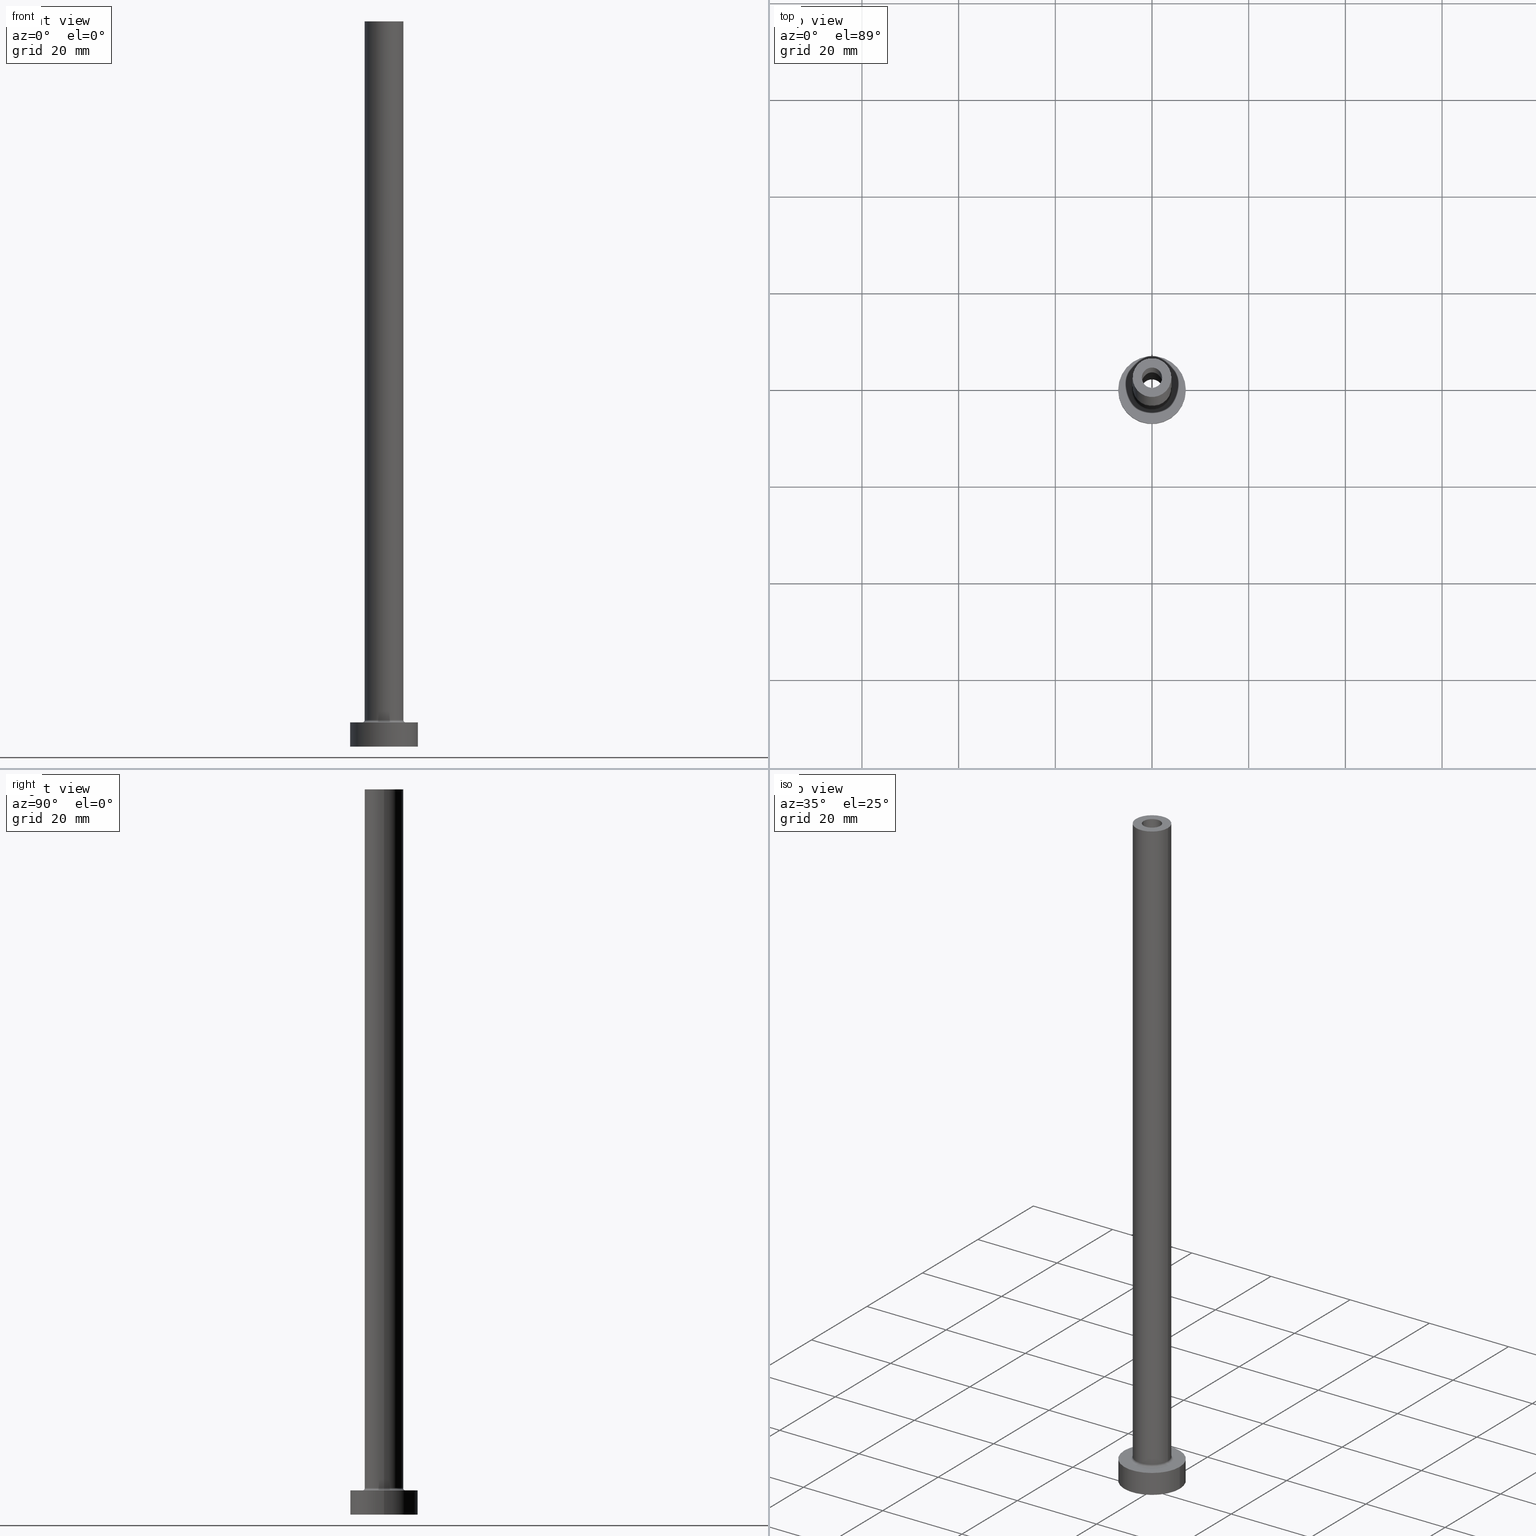
[diagram: canonical four-view strip — front | top / right | iso, engineering-drawing reading convention]
A machine part, canonical four-view strip (front | top / right | iso — engineering-drawing reading convention). The complete STEP part file that produces these views, byte-faithful:
ISO-10303-21;
HEADER;
FILE_DESCRIPTION (( 'STEP AP203' ),
    '1' );
FILE_NAME ('b5b8.STEP',
    '2023-02-13T17:33:29',
    ( '' ),
    ( '' ),
    'SwSTEP 2.0',
    'SolidWorks 2019',
    '' );
FILE_SCHEMA (( 'CONFIG_CONTROL_DESIGN' ));
ENDSEC;

DATA;
#1 = LINE ( 'NONE', #396, #433 ) ;
#2 = EDGE_LOOP ( 'NONE', ( #245, #280, #75, #29 ) ) ;
#3 = CC_DESIGN_DATE_AND_TIME_ASSIGNMENT ( #404, #343, ( #247 ) ) ;
#4 = DIRECTION ( 'NONE',  ( 1.000000000000000000, 0.000000000000000000, 0.000000000000000000 ) ) ;
#5 = EDGE_LOOP ( 'NONE', ( #38, #45, #351, #422 ) ) ;
#6 = DIRECTION ( 'NONE',  ( 0.000000000000000000, 0.000000000000000000, 1.000000000000000000 ) ) ;
#7 = AXIS2_PLACEMENT_3D ( 'NONE', #320, #432, #176 ) ;
#8 = VERTEX_POINT ( 'NONE', #226 ) ;
#9 = DATE_AND_TIME ( #296, #219 ) ;
#10 = FACE_OUTER_BOUND ( 'NONE', #282, .T. ) ;
#11 = CARTESIAN_POINT ( 'NONE',  ( -2.100000000000000089, 0.000000000000000000, 150.0000000000000000 ) ) ;
#12 = CARTESIAN_POINT ( 'NONE',  ( 0.000000000000000000, 0.000000000000000000, 150.0000000000000000 ) ) ;
#13 = CIRCLE ( 'NONE', #411, 4.000000000000000000 ) ;
#14 = AXIS2_PLACEMENT_3D ( 'NONE', #365, #257, #55 ) ;
#15 = DIRECTION ( 'NONE',  ( 0.000000000000000000, 0.000000000000000000, -1.000000000000000000 ) ) ;
#16 = CC_DESIGN_DATE_AND_TIME_ASSIGNMENT ( #375, #21, ( #452 ) ) ;
#17 = ORIENTED_EDGE ( 'NONE', *, *, #221, .T. ) ;
#18 = DATE_AND_TIME ( #443, #327 ) ;
#19 = CARTESIAN_POINT ( 'NONE',  ( 0.000000000000000000, 0.000000000000000000, 150.0000000000000000 ) ) ;
#20 = AXIS2_PLACEMENT_3D ( 'NONE', #268, #233, #228 ) ;
#21 = DATE_TIME_ROLE ( 'classification_date' ) ;
#22 = CARTESIAN_POINT ( 'NONE',  ( 0.000000000000000000, 0.000000000000000000, 5.500000000000005329 ) ) ;
#23 = EDGE_CURVE ( 'NONE', #173, #392, #117, .T. ) ;
#24 = CALENDAR_DATE ( 2023, 13, 2 ) ;
#25 = FACE_OUTER_BOUND ( 'NONE', #130, .T. ) ;
#26 = ORIENTED_EDGE ( 'NONE', *, *, #449, .F. ) ;
#27 = PERSON_AND_ORGANIZATION ( #447, #426 ) ;
#28 = CARTESIAN_POINT ( 'NONE',  ( 0.000000000000000000, 0.000000000000000000, 5.000000000000000000 ) ) ;
#29 = ORIENTED_EDGE ( 'NONE', *, *, #439, .F. ) ;
#30 = AXIS2_PLACEMENT_3D ( 'NONE', #22, #419, #59 ) ;
#31 = APPROVAL_STATUS ( 'not_yet_approved' ) ;
#32 = CARTESIAN_POINT ( 'NONE',  ( -4.000000000000000000, 0.000000000000000000, 5.500000000000005329 ) ) ;
#33 = VERTEX_POINT ( 'NONE', #401 ) ;
#34 = EDGE_CURVE ( 'NONE', #137, #241, #53, .T. ) ;
#35 = PLANE ( 'NONE',  #205 ) ;
#36 = ORIENTED_EDGE ( 'NONE', *, *, #114, .F. ) ;
#37 = FACE_OUTER_BOUND ( 'NONE', #185, .T. ) ;
#38 = ORIENTED_EDGE ( 'NONE', *, *, #276, .F. ) ;
#39 = AXIS2_PLACEMENT_3D ( 'NONE', #169, #160, #274 ) ;
#40 = CC_DESIGN_APPROVAL ( #402, ( #452 ) ) ;
#41 = CARTESIAN_POINT ( 'NONE',  ( 0.000000000000000000, 0.000000000000000000, 150.0000000000000000 ) ) ;
#42 = VERTEX_POINT ( 'NONE', #403 ) ;
#43 = EDGE_CURVE ( 'NONE', #309, #326, #307, .T. ) ;
#44 = CARTESIAN_POINT ( 'NONE',  ( 0.000000000000000000, 0.000000000000000000, 5.000000000000000000 ) ) ;
#45 = ORIENTED_EDGE ( 'NONE', *, *, #377, .T. ) ;
#46 = DIRECTION ( 'NONE',  ( 0.000000000000000000, 0.000000000000000000, 1.000000000000000000 ) ) ;
#47 = VERTEX_POINT ( 'NONE', #323 ) ;
#48 = FACE_OUTER_BOUND ( 'NONE', #102, .T. ) ;
#49 = AXIS2_PLACEMENT_3D ( 'NONE', #12, #156, #409 ) ;
#50 = DIRECTION ( 'NONE',  ( 0.000000000000000000, 0.000000000000000000, -1.000000000000000000 ) ) ;
#51 = EDGE_CURVE ( 'NONE', #47, #241, #374, .T. ) ;
#52 = APPLICATION_PROTOCOL_DEFINITION ( 'international standard', 'config_control_design', 1994, #394 ) ;
#53 = CIRCLE ( 'NONE', #416, 2.250000000000000000 ) ;
#54 = EDGE_CURVE ( 'NONE', #8, #318, #325, .T. ) ;
#55 = DIRECTION ( 'NONE',  ( 1.000000000000000000, 0.000000000000000000, 0.000000000000000000 ) ) ;
#56 = DIRECTION ( 'NONE',  ( 0.000000000000000000, 0.000000000000000000, -1.000000000000000000 ) ) ;
#57 = DIRECTION ( 'NONE',  ( 1.000000000000000000, 0.000000000000000000, 0.000000000000000000 ) ) ;
#58 = ADVANCED_FACE ( 'NONE', ( #10 ), #438, .F. ) ;
#59 = DIRECTION ( 'NONE',  ( 1.000000000000000000, 0.000000000000000000, 0.000000000000000000 ) ) ;
#60 = CLOSED_SHELL ( 'NONE', ( #208, #407, #428, #201, #418, #74, #227, #346, #341, #319, #383, #267, #162, #58 ) ) ;
#61 = AXIS2_PLACEMENT_3D ( 'NONE', #324, #357, #425 ) ;
#62 = COORDINATED_UNIVERSAL_TIME_OFFSET ( 1, 0, .AHEAD. ) ;
#63 = DIRECTION ( 'NONE',  ( -0.000000000000000000, -0.000000000000000000, -1.000000000000000000 ) ) ;
#64 = FACE_OUTER_BOUND ( 'NONE', #149, .T. ) ;
#65 = ORIENTED_EDGE ( 'NONE', *, *, #23, .F. ) ;
#66 = DIRECTION ( 'NONE',  ( 1.000000000000000000, 0.000000000000000000, 0.000000000000000000 ) ) ;
#67 = ORIENTED_EDGE ( 'NONE', *, *, #293, .T. ) ;
#68 = AXIS2_PLACEMENT_3D ( 'NONE', #197, #423, #338 ) ;
#69 = LINE ( 'NONE', #181, #316 ) ;
#70 = ORIENTED_EDGE ( 'NONE', *, *, #189, .F. ) ;
#71 = DIRECTION ( 'NONE',  ( 1.000000000000000000, 0.000000000000000000, 0.000000000000000000 ) ) ;
#72 = EDGE_LOOP ( 'NONE', ( #180, #385 ) ) ;
#73 = LINE ( 'NONE', #244, #139 ) ;
#74 = ADVANCED_FACE ( 'NONE', ( #25 ), #415, .T. ) ;
#75 = ORIENTED_EDGE ( 'NONE', *, *, #43, .F. ) ;
#76 =( GEOMETRIC_REPRESENTATION_CONTEXT ( 3 ) GLOBAL_UNCERTAINTY_ASSIGNED_CONTEXT ( ( #266 ) ) GLOBAL_UNIT_ASSIGNED_CONTEXT ( ( #152, #225, #118 ) ) REPRESENTATION_CONTEXT ( 'NONE', 'WORKASPACE' ) );
#77 = DIRECTION ( 'NONE',  ( 0.000000000000000000, 0.000000000000000000, 1.000000000000000000 ) ) ;
#78 = CARTESIAN_POINT ( 'NONE',  ( 2.250000000000000000, 2.755455298081544285E-16, 111.3639610306789223 ) ) ;
#79 = PRODUCT_DEFINITION_SHAPE ( 'NONE', 'NONE',  #247 ) ;
#80 = CARTESIAN_POINT ( 'NONE',  ( -2.100000000000000089, 0.000000000000000000, 105.0000000000000000 ) ) ;
#81 = EDGE_LOOP ( 'NONE', ( #105, #362 ) ) ;
#82 = DIRECTION ( 'NONE',  ( 0.000000000000000000, 0.000000000000000000, -1.000000000000000000 ) ) ;
#83 = ORIENTED_EDGE ( 'NONE', *, *, #54, .F. ) ;
#84 = AXIS2_PLACEMENT_3D ( 'NONE', #421, #204, #349 ) ;
#85 = PERSON_AND_ORGANIZATION ( #447, #426 ) ;
#86 = APPROVAL ( #328, 'NEUR�EN�' ) ;
#87 = DIRECTION ( 'NONE',  ( -0.000000000000000000, -0.000000000000000000, -1.000000000000000000 ) ) ;
#88 = ORIENTED_EDGE ( 'NONE', *, *, #51, .T. ) ;
#89 = AXIS2_PLACEMENT_3D ( 'NONE', #220, #87, #157 ) ;
#90 = ORIENTED_EDGE ( 'NONE', *, *, #255, .T. ) ;
#91 = CARTESIAN_POINT ( 'NONE',  ( -2.250000000000000000, 0.000000000000000000, 111.3639610306789223 ) ) ;
#92 = SHAPE_DEFINITION_REPRESENTATION ( #79, #306 ) ;
#93 = DIRECTION ( 'NONE',  ( -1.000000000000000000, 0.000000000000000000, 0.000000000000000000 ) ) ;
#94 = VECTOR ( 'NONE', #82, 1000.000000000000000 ) ;
#95 = DIRECTION ( 'NONE',  ( 1.000000000000000000, 0.000000000000000000, 0.000000000000000000 ) ) ;
#96 = ORIENTED_EDGE ( 'NONE', *, *, #125, .T. ) ;
#97 = APPROVAL_STATUS ( 'not_yet_approved' ) ;
#98 = CARTESIAN_POINT ( 'NONE',  ( -7.000000000000000000, 0.000000000000000000, 0.000000000000000000 ) ) ;
#99 = EDGE_CURVE ( 'NONE', #203, #33, #186, .T. ) ;
#100 = ORIENTED_EDGE ( 'NONE', *, *, #232, .F. ) ;
#101 = LINE ( 'NONE', #354, #154 ) ;
#102 = EDGE_LOOP ( 'NONE', ( #96, #88, #364, #36 ) ) ;
#103 = CIRCLE ( 'NONE', #161, 2.100000000000000089 ) ;
#104 = DIRECTION ( 'NONE',  ( -0.000000000000000000, -0.000000000000000000, -1.000000000000000000 ) ) ;
#105 = ORIENTED_EDGE ( 'NONE', *, *, #168, .T. ) ;
#106 = CARTESIAN_POINT ( 'NONE',  ( 4.500000000000000888, 0.000000000000000000, 5.000000000000002665 ) ) ;
#107 = ORIENTED_EDGE ( 'NONE', *, *, #457, .F. ) ;
#108 = DIRECTION ( 'NONE',  ( -0.000000000000000000, -0.000000000000000000, -1.000000000000000000 ) ) ;
#109 = CARTESIAN_POINT ( 'NONE',  ( 0.000000000000000000, 0.000000000000000000, 5.000000000000000000 ) ) ;
#110 = AXIS2_PLACEMENT_3D ( 'NONE', #196, #304, #95 ) ;
#111 = CARTESIAN_POINT ( 'NONE',  ( 0.000000000000000000, 0.000000000000000000, 0.000000000000000000 ) ) ;
#112 = ORIENTED_EDGE ( 'NONE', *, *, #293, .F. ) ;
#113 = ORIENTED_EDGE ( 'NONE', *, *, #43, .T. ) ;
#114 = EDGE_CURVE ( 'NONE', #42, #137, #200, .T. ) ;
#115 = CARTESIAN_POINT ( 'NONE',  ( 0.000000000000000000, 0.000000000000000000, 5.500000000000005329 ) ) ;
#116 = ORIENTED_EDGE ( 'NONE', *, *, #34, .T. ) ;
#117 = CIRCLE ( 'NONE', #358, 7.000000000000000000 ) ;
#118 =( NAMED_UNIT ( * ) SI_UNIT ( $, .STERADIAN. ) SOLID_ANGLE_UNIT ( ) );
#119 = APPLICATION_PROTOCOL_DEFINITION ( 'international standard', 'config_control_design', 1994, #369 ) ;
#120 = APPROVAL_DATE_TIME ( #18, #260 ) ;
#121 = ORIENTED_EDGE ( 'NONE', *, *, #99, .T. ) ;
#122 = AXIS2_PLACEMENT_3D ( 'NONE', #284, #77, #4 ) ;
#123 = DESIGN_CONTEXT ( 'detailed design', #394, 'design' ) ;
#124 = DIRECTION ( 'NONE',  ( -1.000000000000000000, 1.224646799147351482E-16, 0.000000000000000000 ) ) ;
#125 = EDGE_CURVE ( 'NONE', #42, #47, #147, .T. ) ;
#126 = APPROVAL_ROLE ( '' ) ;
#127 = CYLINDRICAL_SURFACE ( 'NONE', #287, 2.100000000000000089 ) ;
#128 = DIRECTION ( 'NONE',  ( -0.000000000000000000, -0.000000000000000000, -1.000000000000000000 ) ) ;
#129 = AXIS2_PLACEMENT_3D ( 'NONE', #111, #315, #456 ) ;
#130 = EDGE_LOOP ( 'NONE', ( #146, #65, #212, #167 ) ) ;
#131 = COORDINATED_UNIVERSAL_TIME_OFFSET ( 1, 0, .AHEAD. ) ;
#132 = CC_DESIGN_PERSON_AND_ORGANIZATION_ASSIGNMENT ( #442, #150, ( #247 ) ) ;
#133 = DIRECTION ( 'NONE',  ( 1.000000000000000000, 0.000000000000000000, -0.000000000000000000 ) ) ;
#134 = DIRECTION ( 'NONE',  ( 1.000000000000000000, 0.000000000000000000, 0.000000000000000000 ) ) ;
#135 = ORIENTED_EDGE ( 'NONE', *, *, #439, .T. ) ;
#136 = LINE ( 'NONE', #216, #397 ) ;
#137 = VERTEX_POINT ( 'NONE', #342 ) ;
#138 = EDGE_CURVE ( 'NONE', #171, #321, #333, .T. ) ;
#139 = VECTOR ( 'NONE', #393, 1000.000000000000000 ) ;
#140 = APPROVAL_PERSON_ORGANIZATION ( #262, #402, #347 ) ;
#141 = FACE_OUTER_BOUND ( 'NONE', #427, .T. ) ;
#142 = VERTEX_POINT ( 'NONE', #98 ) ;
#143 = FACE_OUTER_BOUND ( 'NONE', #151, .T. ) ;
#144 = ORIENTED_EDGE ( 'NONE', *, *, #334, .F. ) ;
#145 = DIRECTION ( 'NONE',  ( 0.000000000000000000, 0.000000000000000000, 1.000000000000000000 ) ) ;
#146 = ORIENTED_EDGE ( 'NONE', *, *, #377, .F. ) ;
#147 = CIRCLE ( 'NONE', #110, 2.250000000000000000 ) ;
#148 = FACE_OUTER_BOUND ( 'NONE', #353, .T. ) ;
#149 = EDGE_LOOP ( 'NONE', ( #236, #330 ) ) ;
#150 = PERSON_AND_ORGANIZATION_ROLE ( 'creator' ) ;
#151 = EDGE_LOOP ( 'NONE', ( #158, #107, #292, #237 ) ) ;
#152 =( LENGTH_UNIT ( ) NAMED_UNIT ( * ) SI_UNIT ( .MILLI., .METRE. ) );
#153 = EDGE_CURVE ( 'NONE', #47, #42, #300, .T. ) ;
#154 = VECTOR ( 'NONE', #207, 1000.000000000000000 ) ;
#155 = AXIS2_PLACEMENT_3D ( 'NONE', #406, #259, #331 ) ;
#156 = DIRECTION ( 'NONE',  ( 0.000000000000000000, 0.000000000000000000, 1.000000000000000000 ) ) ;
#157 = DIRECTION ( 'NONE',  ( -1.000000000000000000, 0.000000000000000000, 0.000000000000000000 ) ) ;
#158 = ORIENTED_EDGE ( 'NONE', *, *, #138, .F. ) ;
#159 = PERSON_AND_ORGANIZATION_ROLE ( 'creator' ) ;
#160 = DIRECTION ( 'NONE',  ( 0.000000000000000000, 0.000000000000000000, 1.000000000000000000 ) ) ;
#161 = AXIS2_PLACEMENT_3D ( 'NONE', #391, #145, #71 ) ;
#162 = ADVANCED_FACE ( 'NONE', ( #340, #302 ), #450, .F. ) ;
#163 = PERSON_AND_ORGANIZATION ( #447, #426 ) ;
#164 = DIRECTION ( 'NONE',  ( -1.000000000000000000, 0.000000000000000000, 0.000000000000000000 ) ) ;
#165 = PERSON_AND_ORGANIZATION ( #447, #426 ) ;
#166 = CARTESIAN_POINT ( 'NONE',  ( 0.000000000000000000, 0.000000000000000000, 5.000000000000000000 ) ) ;
#167 = ORIENTED_EDGE ( 'NONE', *, *, #232, .T. ) ;
#168 = EDGE_CURVE ( 'NONE', #318, #321, #198, .T. ) ;
#169 = CARTESIAN_POINT ( 'NONE',  ( 0.000000000000000000, 0.000000000000000000, 5.000000000000000000 ) ) ;
#170 = AXIS2_PLACEMENT_3D ( 'NONE', #44, #363, #289 ) ;
#171 = VERTEX_POINT ( 'NONE', #32 ) ;
#172 = CARTESIAN_POINT ( 'NONE',  ( 2.250000000000000000, 2.755455298081544285E-16, 0.000000000000000000 ) ) ;
#173 = VERTEX_POINT ( 'NONE', #271 ) ;
#174 = DIRECTION ( 'NONE',  ( 1.000000000000000000, 0.000000000000000000, 0.000000000000000000 ) ) ;
#175 = ORIENTED_EDGE ( 'NONE', *, *, #255, .F. ) ;
#176 = DIRECTION ( 'NONE',  ( -1.000000000000000000, 0.000000000000000000, 0.000000000000000000 ) ) ;
#177 = AXIS2_PLACEMENT_3D ( 'NONE', #218, #367, #254 ) ;
#178 = CIRCLE ( 'NONE', #49, 2.100000000000000089 ) ;
#179 = CARTESIAN_POINT ( 'NONE',  ( 2.100000000000000089, 2.571758278209441464E-16, 105.0000000000000000 ) ) ;
#180 = ORIENTED_EDGE ( 'NONE', *, *, #125, .F. ) ;
#181 = CARTESIAN_POINT ( 'NONE',  ( 4.000000000000000000, 4.898587196589412829E-16, 150.0000000000000000 ) ) ;
#182 = DIRECTION ( 'NONE',  ( 0.000000000000000000, -1.000000000000000000, 0.000000000000000000 ) ) ;
#183 = CC_DESIGN_PERSON_AND_ORGANIZATION_ASSIGNMENT ( #165, #453, ( #441 ) ) ;
#184 = DIRECTION ( 'NONE',  ( 1.000000000000000000, 0.000000000000000000, 0.000000000000000000 ) ) ;
#185 = EDGE_LOOP ( 'NONE', ( #206, #112, #90, #424 ) ) ;
#186 = CIRCLE ( 'NONE', #224, 2.100000000000000089 ) ;
#187 = CARTESIAN_POINT ( 'NONE',  ( 4.500000000000000888, 0.000000000000000000, 5.500000000000005329 ) ) ;
#188 = LINE ( 'NONE', #11, #94 ) ;
#189 = EDGE_CURVE ( 'NONE', #171, #8, #348, .T. ) ;
#190 = PERSON_AND_ORGANIZATION ( #447, #426 ) ;
#191 = CIRCLE ( 'NONE', #248, 4.500000000000000888 ) ;
#192 = PERSON_AND_ORGANIZATION_ROLE ( 'design_owner' ) ;
#193 = APPROVAL_ROLE ( '' ) ;
#194 = CARTESIAN_POINT ( 'NONE',  ( 0.000000000000000000, 0.000000000000000000, 150.0000000000000000 ) ) ;
#195 = COORDINATED_UNIVERSAL_TIME_OFFSET ( 1, 0, .AHEAD. ) ;
#196 = CARTESIAN_POINT ( 'NONE',  ( 0.000000000000000000, 0.000000000000000000, 105.0000000000000000 ) ) ;
#197 = CARTESIAN_POINT ( 'NONE',  ( 0.000000000000000000, 0.000000000000000000, 105.0000000000000000 ) ) ;
#198 = CIRCLE ( 'NONE', #405, 4.500000000000000888 ) ;
#199 = PERSON_AND_ORGANIZATION ( #447, #426 ) ;
#200 = LINE ( 'NONE', #91, #451 ) ;
#201 = ADVANCED_FACE ( 'NONE', ( #446 ), #455, .T. ) ;
#202 = CARTESIAN_POINT ( 'NONE',  ( 0.000000000000000000, 0.000000000000000000, 105.0000000000000000 ) ) ;
#203 = VERTEX_POINT ( 'NONE', #382 ) ;
#204 = DIRECTION ( 'NONE',  ( 0.000000000000000000, 0.000000000000000000, 1.000000000000000000 ) ) ;
#205 = AXIS2_PLACEMENT_3D ( 'NONE', #238, #46, #400 ) ;
#206 = ORIENTED_EDGE ( 'NONE', *, *, #283, .F. ) ;
#207 = DIRECTION ( 'NONE',  ( -0.000000000000000000, -0.000000000000000000, -1.000000000000000000 ) ) ;
#208 = ADVANCED_FACE ( 'NONE', ( #448 ), #127, .F. ) ;
#209 = CARTESIAN_POINT ( 'NONE',  ( 7.000000000000000000, 8.572527594031473190E-16, 0.000000000000000000 ) ) ;
#210 = DIRECTION ( 'NONE',  ( 0.000000000000000000, 0.000000000000000000, 1.000000000000000000 ) ) ;
#211 = AXIS2_PLACEMENT_3D ( 'NONE', #305, #275, #124 ) ;
#212 = ORIENTED_EDGE ( 'NONE', *, *, #298, .T. ) ;
#213 = APPROVAL_PERSON_ORGANIZATION ( #27, #260, #126 ) ;
#214 = CARTESIAN_POINT ( 'NONE',  ( -4.000000000000000000, 0.000000000000000000, 150.0000000000000000 ) ) ;
#215 = ORIENTED_EDGE ( 'NONE', *, *, #99, .F. ) ;
#216 = CARTESIAN_POINT ( 'NONE',  ( 2.100000000000000089, 2.571758278209441464E-16, 150.0000000000000000 ) ) ;
#217 = EDGE_LOOP ( 'NONE', ( #100, #144 ) ) ;
#218 = CARTESIAN_POINT ( 'NONE',  ( 0.000000000000000000, 0.000000000000000000, 105.0000000000000000 ) ) ;
#219 = LOCAL_TIME ( 18, 33, 29.00000000000000000, #258 ) ;
#220 = CARTESIAN_POINT ( 'NONE',  ( 0.000000000000000000, 0.000000000000000000, 5.000000000000000000 ) ) ;
#221 = EDGE_CURVE ( 'NONE', #420, #388, #460, .T. ) ;
#222 = PRODUCT ( 'b5b8', 'b5b8', '', ( #373 ) ) ;
#223 = DIRECTION ( 'NONE',  ( -1.000000000000000000, 0.000000000000000000, 0.000000000000000000 ) ) ;
#224 = AXIS2_PLACEMENT_3D ( 'NONE', #344, #454, #134 ) ;
#225 =( NAMED_UNIT ( * ) PLANE_ANGLE_UNIT ( ) SI_UNIT ( $, .RADIAN. ) );
#226 = CARTESIAN_POINT ( 'NONE',  ( 4.000000000000000000, 4.898587196589412829E-16, 5.500000000000005329 ) ) ;
#227 = ADVANCED_FACE ( 'NONE', ( #381, #64 ), #414, .T. ) ;
#228 = DIRECTION ( 'NONE',  ( 1.000000000000000000, 0.000000000000000000, 0.000000000000000000 ) ) ;
#229 = DATE_AND_TIME ( #24, #350 ) ;
#230 = DIRECTION ( 'NONE',  ( -0.000000000000000000, -0.000000000000000000, -1.000000000000000000 ) ) ;
#231 = AXIS2_PLACEMENT_3D ( 'NONE', #202, #308, #133 ) ;
#232 = EDGE_CURVE ( 'NONE', #142, #399, #459, .T. ) ;
#233 = DIRECTION ( 'NONE',  ( 0.000000000000000000, 0.000000000000000000, 1.000000000000000000 ) ) ;
#234 = LOCAL_TIME ( 18, 33, 29.00000000000000000, #195 ) ;
#235 = CARTESIAN_POINT ( 'NONE',  ( 0.000000000000000000, 0.000000000000000000, 150.0000000000000000 ) ) ;
#236 = ORIENTED_EDGE ( 'NONE', *, *, #23, .T. ) ;
#237 = ORIENTED_EDGE ( 'NONE', *, *, #370, .F. ) ;
#238 = CARTESIAN_POINT ( 'NONE',  ( 0.000000000000000000, 0.000000000000000000, 150.0000000000000000 ) ) ;
#239 = AXIS2_PLACEMENT_3D ( 'NONE', #311, #376, #57 ) ;
#240 = APPROVAL_PERSON_ORGANIZATION ( #190, #86, #193 ) ;
#241 = VERTEX_POINT ( 'NONE', #172 ) ;
#242 = EDGE_CURVE ( 'NONE', #241, #137, #339, .T. ) ;
#243 = ORIENTED_EDGE ( 'NONE', *, *, #457, .T. ) ;
#244 = CARTESIAN_POINT ( 'NONE',  ( -4.000000000000000000, 0.000000000000000000, 150.0000000000000000 ) ) ;
#245 = ORIENTED_EDGE ( 'NONE', *, *, #449, .T. ) ;
#246 = FACE_BOUND ( 'NONE', #312, .T. ) ;
#247 = PRODUCT_DEFINITION ( 'NEZN�M�', '', #441, #123 ) ;
#248 = AXIS2_PLACEMENT_3D ( 'NONE', #281, #108, #286 ) ;
#249 = CARTESIAN_POINT ( 'NONE',  ( 0.000000000000000000, 0.000000000000000000, 0.000000000000000000 ) ) ;
#250 = CIRCLE ( 'NONE', #380, 4.000000000000000000 ) ;
#251 = CARTESIAN_POINT ( 'NONE',  ( 7.000000000000000000, 8.572527594031473190E-16, 5.000000000000000000 ) ) ;
#252 = ORIENTED_EDGE ( 'NONE', *, *, #114, .T. ) ;
#253 = DIRECTION ( 'NONE',  ( -0.000000000000000000, -0.000000000000000000, -1.000000000000000000 ) ) ;
#254 = DIRECTION ( 'NONE',  ( 1.000000000000000000, 0.000000000000000000, 0.000000000000000000 ) ) ;
#255 = EDGE_CURVE ( 'NONE', #388, #171, #73, .T. ) ;
#256 = CC_DESIGN_APPROVAL ( #260, ( #441 ) ) ;
#257 = DIRECTION ( 'NONE',  ( 0.000000000000000000, 0.000000000000000000, 1.000000000000000000 ) ) ;
#258 = COORDINATED_UNIVERSAL_TIME_OFFSET ( 1, 0, .AHEAD. ) ;
#259 = DIRECTION ( 'NONE',  ( 0.000000000000000000, 0.000000000000000000, 1.000000000000000000 ) ) ;
#260 = APPROVAL ( #31, 'NEUR�EN�' ) ;
#261 = TOROIDAL_SURFACE ( 'NONE', #122, 4.500000000000000888, 0.5000000000000000000 ) ;
#262 = PERSON_AND_ORGANIZATION ( #447, #426 ) ;
#263 = ORIENTED_EDGE ( 'NONE', *, *, #138, .T. ) ;
#264 = PERSON_AND_ORGANIZATION_ROLE ( 'classification_officer' ) ;
#265 = DIRECTION ( 'NONE',  ( 0.000000000000000000, 0.000000000000000000, -1.000000000000000000 ) ) ;
#266 = UNCERTAINTY_MEASURE_WITH_UNIT (LENGTH_MEASURE( 1.000000000000000082E-05 ), #152, 'distance_accuracy_value', 'NONE');
#267 = ADVANCED_FACE ( 'NONE', ( #148 ), #387, .F. ) ;
#268 = CARTESIAN_POINT ( 'NONE',  ( 0.000000000000000000, 0.000000000000000000, 150.0000000000000000 ) ) ;
#269 = APPROVAL_DATE_TIME ( #229, #402 ) ;
#270 = AXIS2_PLACEMENT_3D ( 'NONE', #322, #210, #174 ) ;
#271 = CARTESIAN_POINT ( 'NONE',  ( -7.000000000000000000, 0.000000000000000000, 5.000000000000000000 ) ) ;
#272 = EDGE_LOOP ( 'NONE', ( #70, #263, #431, #83 ) ) ;
#273 = SECURITY_CLASSIFICATION_LEVEL ( 'unclassified' ) ;
#274 = DIRECTION ( 'NONE',  ( 1.000000000000000000, 0.000000000000000000, -0.000000000000000000 ) ) ;
#275 = DIRECTION ( 'NONE',  ( 1.224646799147353207E-16, 1.000000000000000000, -0.000000000000000000 ) ) ;
#276 = EDGE_CURVE ( 'NONE', #392, #173, #366, .T. ) ;
#277 = ORIENTED_EDGE ( 'NONE', *, *, #34, .F. ) ;
#278 = PLANE ( 'NONE',  #129 ) ;
#279 = AXIS2_PLACEMENT_3D ( 'NONE', #336, #15, #223 ) ;
#280 = ORIENTED_EDGE ( 'NONE', *, *, #355, .T. ) ;
#281 = CARTESIAN_POINT ( 'NONE',  ( 0.000000000000000000, 0.000000000000000000, 5.000000000000000000 ) ) ;
#282 = EDGE_LOOP ( 'NONE', ( #290, #121, #135, #356 ) ) ;
#283 = EDGE_CURVE ( 'NONE', #420, #8, #69, .T. ) ;
#284 = CARTESIAN_POINT ( 'NONE',  ( 0.000000000000000000, 0.000000000000000000, 5.500000000000005329 ) ) ;
#285 = ORIENTED_EDGE ( 'NONE', *, *, #390, .T. ) ;
#286 = DIRECTION ( 'NONE',  ( 1.000000000000000000, 0.000000000000000000, 0.000000000000000000 ) ) ;
#287 = AXIS2_PLACEMENT_3D ( 'NONE', #19, #265, #93 ) ;
#288 = EDGE_LOOP ( 'NONE', ( #26, #215 ) ) ;
#289 = DIRECTION ( 'NONE',  ( 1.000000000000000000, 0.000000000000000000, 0.000000000000000000 ) ) ;
#290 = ORIENTED_EDGE ( 'NONE', *, *, #355, .F. ) ;
#291 = COORDINATED_UNIVERSAL_TIME_OFFSET ( 1, 0, .AHEAD. ) ;
#292 = ORIENTED_EDGE ( 'NONE', *, *, #54, .T. ) ;
#293 = EDGE_CURVE ( 'NONE', #388, #420, #13, .T. ) ;
#294 = FACE_OUTER_BOUND ( 'NONE', #5, .T. ) ;
#295 = CIRCLE ( 'NONE', #270, 7.000000000000000000 ) ;
#296 = CALENDAR_DATE ( 2023, 13, 2 ) ;
#297 = DIRECTION ( 'NONE',  ( 1.000000000000000000, 0.000000000000000000, 0.000000000000000000 ) ) ;
#298 = EDGE_CURVE ( 'NONE', #173, #142, #101, .T. ) ;
#299 = DIRECTION ( 'NONE',  ( 0.000000000000000000, 0.000000000000000000, -1.000000000000000000 ) ) ;
#300 = CIRCLE ( 'NONE', #68, 2.250000000000000000 ) ;
#301 = CALENDAR_DATE ( 2023, 13, 2 ) ;
#302 = FACE_OUTER_BOUND ( 'NONE', #72, .T. ) ;
#303 = CC_DESIGN_PERSON_AND_ORGANIZATION_ASSIGNMENT ( #85, #192, ( #222 ) ) ;
#304 = DIRECTION ( 'NONE',  ( 0.000000000000000000, 0.000000000000000000, 1.000000000000000000 ) ) ;
#305 = CARTESIAN_POINT ( 'NONE',  ( -4.500000000000000888, 5.510910596163089556E-16, 5.500000000000005329 ) ) ;
#306 = ADVANCED_BREP_SHAPE_REPRESENTATION ( 'b5b8', ( #389, #14 ), #76 ) ;
#307 = CIRCLE ( 'NONE', #177, 2.100000000000000089 ) ;
#308 = DIRECTION ( 'NONE',  ( 0.000000000000000000, 0.000000000000000000, 1.000000000000000000 ) ) ;
#309 = VERTEX_POINT ( 'NONE', #80 ) ;
#310 = PRODUCT_RELATED_PRODUCT_CATEGORY ( 'detail', '', ( #222 ) ) ;
#311 = CARTESIAN_POINT ( 'NONE',  ( 0.000000000000000000, 0.000000000000000000, 0.000000000000000000 ) ) ;
#312 = EDGE_LOOP ( 'NONE', ( #277, #458 ) ) ;
#313 = FACE_OUTER_BOUND ( 'NONE', #217, .T. ) ;
#314 = EDGE_LOOP ( 'NONE', ( #395, #410, #243, #175 ) ) ;
#315 = DIRECTION ( 'NONE',  ( 0.000000000000000000, 0.000000000000000000, 1.000000000000000000 ) ) ;
#316 = VECTOR ( 'NONE', #430, 1000.000000000000000 ) ;
#317 = TOROIDAL_SURFACE ( 'NONE', #155, 4.500000000000000888, 0.5000000000000000000 ) ;
#318 = VERTEX_POINT ( 'NONE', #106 ) ;
#319 = ADVANCED_FACE ( 'NONE', ( #461, #141 ), #35, .T. ) ;
#320 = CARTESIAN_POINT ( 'NONE',  ( 0.000000000000000000, 0.000000000000000000, 150.0000000000000000 ) ) ;
#321 = VERTEX_POINT ( 'NONE', #352 ) ;
#322 = CARTESIAN_POINT ( 'NONE',  ( 0.000000000000000000, 0.000000000000000000, 0.000000000000000000 ) ) ;
#323 = CARTESIAN_POINT ( 'NONE',  ( 2.250000000000000000, 2.755455298081544285E-16, 105.0000000000000000 ) ) ;
#324 = CARTESIAN_POINT ( 'NONE',  ( 0.000000000000000000, 0.000000000000000000, 111.3639610306789223 ) ) ;
#325 = CIRCLE ( 'NONE', #440, 0.5000000000000004441 ) ;
#326 = VERTEX_POINT ( 'NONE', #179 ) ;
#327 = LOCAL_TIME ( 18, 33, 29.00000000000000000, #62 ) ;
#328 = APPROVAL_STATUS ( 'not_yet_approved' ) ;
#329 = CC_DESIGN_PERSON_AND_ORGANIZATION_ASSIGNMENT ( #199, #159, ( #441 ) ) ;
#330 = ORIENTED_EDGE ( 'NONE', *, *, #276, .T. ) ;
#331 = DIRECTION ( 'NONE',  ( 1.000000000000000000, 0.000000000000000000, 0.000000000000000000 ) ) ;
#332 = CYLINDRICAL_SURFACE ( 'NONE', #89, 7.000000000000000000 ) ;
#333 = CIRCLE ( 'NONE', #211, 0.5000000000000004441 ) ;
#334 = EDGE_CURVE ( 'NONE', #399, #142, #295, .T. ) ;
#335 = CYLINDRICAL_SURFACE ( 'NONE', #279, 2.250000000000000000 ) ;
#336 = CARTESIAN_POINT ( 'NONE',  ( 0.000000000000000000, 0.000000000000000000, 111.3639610306789223 ) ) ;
#337 = DIRECTION ( 'NONE',  ( 1.000000000000000000, 0.000000000000000000, 0.000000000000000000 ) ) ;
#338 = DIRECTION ( 'NONE',  ( 1.000000000000000000, 0.000000000000000000, 0.000000000000000000 ) ) ;
#339 = CIRCLE ( 'NONE', #239, 2.250000000000000000 ) ;
#340 = FACE_BOUND ( 'NONE', #434, .T. ) ;
#341 = ADVANCED_FACE ( 'NONE', ( #37 ), #361, .T. ) ;
#342 = CARTESIAN_POINT ( 'NONE',  ( -2.250000000000000000, 0.000000000000000000, 0.000000000000000000 ) ) ;
#343 = DATE_TIME_ROLE ( 'creation_date' ) ;
#344 = CARTESIAN_POINT ( 'NONE',  ( 0.000000000000000000, 0.000000000000000000, 150.0000000000000000 ) ) ;
#345 = ORIENTED_EDGE ( 'NONE', *, *, #153, .T. ) ;
#346 = ADVANCED_FACE ( 'NONE', ( #246, #313 ), #278, .F. ) ;
#347 = APPROVAL_ROLE ( '' ) ;
#348 = CIRCLE ( 'NONE', #30, 4.000000000000000000 ) ;
#349 = DIRECTION ( 'NONE',  ( 1.000000000000000000, 0.000000000000000000, 0.000000000000000000 ) ) ;
#350 = LOCAL_TIME ( 18, 33, 29.00000000000000000, #131 ) ;
#351 = ORIENTED_EDGE ( 'NONE', *, *, #334, .T. ) ;
#352 = CARTESIAN_POINT ( 'NONE',  ( -4.500000000000000888, 5.510910596163088569E-16, 5.000000000000002665 ) ) ;
#353 = EDGE_LOOP ( 'NONE', ( #412, #345, #252, #116 ) ) ;
#354 = CARTESIAN_POINT ( 'NONE',  ( -7.000000000000000000, 0.000000000000000000, 5.000000000000000000 ) ) ;
#355 = EDGE_CURVE ( 'NONE', #203, #326, #136, .T. ) ;
#356 = ORIENTED_EDGE ( 'NONE', *, *, #390, .F. ) ;
#357 = DIRECTION ( 'NONE',  ( 0.000000000000000000, 0.000000000000000000, -1.000000000000000000 ) ) ;
#358 = AXIS2_PLACEMENT_3D ( 'NONE', #109, #360, #436 ) ;
#359 = CC_DESIGN_APPROVAL ( #86, ( #247 ) ) ;
#360 = DIRECTION ( 'NONE',  ( 0.000000000000000000, 0.000000000000000000, 1.000000000000000000 ) ) ;
#361 = CYLINDRICAL_SURFACE ( 'NONE', #7, 4.000000000000000000 ) ;
#362 = ORIENTED_EDGE ( 'NONE', *, *, #370, .T. ) ;
#363 = DIRECTION ( 'NONE',  ( 0.000000000000000000, 0.000000000000000000, 1.000000000000000000 ) ) ;
#364 = ORIENTED_EDGE ( 'NONE', *, *, #242, .T. ) ;
#365 = CARTESIAN_POINT ( 'NONE',  ( 0.000000000000000000, 0.000000000000000000, 0.000000000000000000 ) ) ;
#366 = CIRCLE ( 'NONE', #170, 7.000000000000000000 ) ;
#367 = DIRECTION ( 'NONE',  ( 0.000000000000000000, 0.000000000000000000, 1.000000000000000000 ) ) ;
#368 = CARTESIAN_POINT ( 'NONE',  ( 4.000000000000000000, 4.898587196589412829E-16, 150.0000000000000000 ) ) ;
#369 = APPLICATION_CONTEXT ( 'configuration controlled 3d designs of mechanical parts and assemblies' ) ;
#370 = EDGE_CURVE ( 'NONE', #321, #318, #191, .T. ) ;
#371 = DIRECTION ( 'NONE',  ( 0.000000000000000000, 0.000000000000000000, 1.000000000000000000 ) ) ;
#372 = AXIS2_PLACEMENT_3D ( 'NONE', #194, #299, #444 ) ;
#373 = MECHANICAL_CONTEXT ( 'NONE', #369, 'mechanical' ) ;
#374 = LINE ( 'NONE', #78, #386 ) ;
#375 = DATE_AND_TIME ( #301, #234 ) ;
#376 = DIRECTION ( 'NONE',  ( -0.000000000000000000, -0.000000000000000000, -1.000000000000000000 ) ) ;
#377 = EDGE_CURVE ( 'NONE', #392, #399, #1, .T. ) ;
#378 = DIRECTION ( 'NONE',  ( -1.000000000000000000, 0.000000000000000000, 0.000000000000000000 ) ) ;
#379 = AXIS2_PLACEMENT_3D ( 'NONE', #166, #63, #378 ) ;
#380 = AXIS2_PLACEMENT_3D ( 'NONE', #115, #371, #297 ) ;
#381 = FACE_BOUND ( 'NONE', #81, .T. ) ;
#382 = CARTESIAN_POINT ( 'NONE',  ( 2.100000000000000089, 2.571758278209441464E-16, 150.0000000000000000 ) ) ;
#383 = ADVANCED_FACE ( 'NONE', ( #143 ), #261, .F. ) ;
#384 = DIRECTION ( 'NONE',  ( 0.000000000000000000, 0.000000000000000000, -1.000000000000000000 ) ) ;
#385 = ORIENTED_EDGE ( 'NONE', *, *, #153, .F. ) ;
#386 = VECTOR ( 'NONE', #50, 1000.000000000000000 ) ;
#387 = CYLINDRICAL_SURFACE ( 'NONE', #61, 2.250000000000000000 ) ;
#388 = VERTEX_POINT ( 'NONE', #214 ) ;
#389 = MANIFOLD_SOLID_BREP ( 'Odebrat vysunut�m4', #60 ) ;
#390 = EDGE_CURVE ( 'NONE', #326, #309, #103, .T. ) ;
#391 = CARTESIAN_POINT ( 'NONE',  ( 0.000000000000000000, 0.000000000000000000, 105.0000000000000000 ) ) ;
#392 = VERTEX_POINT ( 'NONE', #251 ) ;
#393 = DIRECTION ( 'NONE',  ( -0.000000000000000000, -0.000000000000000000, -1.000000000000000000 ) ) ;
#394 = APPLICATION_CONTEXT ( 'configuration controlled 3d designs of mechanical parts and assemblies' ) ;
#395 = ORIENTED_EDGE ( 'NONE', *, *, #221, .F. ) ;
#396 = CARTESIAN_POINT ( 'NONE',  ( 7.000000000000000000, 8.572527594031473190E-16, 5.000000000000000000 ) ) ;
#397 = VECTOR ( 'NONE', #429, 1000.000000000000000 ) ;
#398 = LOCAL_TIME ( 18, 33, 29.00000000000000000, #291 ) ;
#399 = VERTEX_POINT ( 'NONE', #209 ) ;
#400 = DIRECTION ( 'NONE',  ( 1.000000000000000000, 0.000000000000000000, -0.000000000000000000 ) ) ;
#401 = CARTESIAN_POINT ( 'NONE',  ( -2.100000000000000089, 0.000000000000000000, 150.0000000000000000 ) ) ;
#402 = APPROVAL ( #97, 'NEUR�EN�' ) ;
#403 = CARTESIAN_POINT ( 'NONE',  ( -2.250000000000000000, 0.000000000000000000, 105.0000000000000000 ) ) ;
#404 = DATE_AND_TIME ( #437, #398 ) ;
#405 = AXIS2_PLACEMENT_3D ( 'NONE', #28, #128, #66 ) ;
#406 = CARTESIAN_POINT ( 'NONE',  ( 0.000000000000000000, 0.000000000000000000, 5.500000000000005329 ) ) ;
#407 = ADVANCED_FACE ( 'NONE', ( #48 ), #335, .F. ) ;
#408 = APPROVAL_DATE_TIME ( #9, #86 ) ;
#409 = DIRECTION ( 'NONE',  ( 1.000000000000000000, 0.000000000000000000, 0.000000000000000000 ) ) ;
#410 = ORIENTED_EDGE ( 'NONE', *, *, #283, .T. ) ;
#411 = AXIS2_PLACEMENT_3D ( 'NONE', #41, #6, #184 ) ;
#412 = ORIENTED_EDGE ( 'NONE', *, *, #51, .F. ) ;
#413 = CC_DESIGN_PERSON_AND_ORGANIZATION_ASSIGNMENT ( #163, #264, ( #452 ) ) ;
#414 = PLANE ( 'NONE',  #39 ) ;
#415 = CYLINDRICAL_SURFACE ( 'NONE', #379, 7.000000000000000000 ) ;
#416 = AXIS2_PLACEMENT_3D ( 'NONE', #249, #253, #337 ) ;
#417 = CC_DESIGN_SECURITY_CLASSIFICATION ( #452, ( #441 ) ) ;
#418 = ADVANCED_FACE ( 'NONE', ( #294 ), #332, .T. ) ;
#419 = DIRECTION ( 'NONE',  ( 0.000000000000000000, 0.000000000000000000, 1.000000000000000000 ) ) ;
#420 = VERTEX_POINT ( 'NONE', #368 ) ;
#421 = CARTESIAN_POINT ( 'NONE',  ( 0.000000000000000000, 0.000000000000000000, 0.000000000000000000 ) ) ;
#422 = ORIENTED_EDGE ( 'NONE', *, *, #298, .F. ) ;
#423 = DIRECTION ( 'NONE',  ( 0.000000000000000000, 0.000000000000000000, 1.000000000000000000 ) ) ;
#424 = ORIENTED_EDGE ( 'NONE', *, *, #189, .T. ) ;
#425 = DIRECTION ( 'NONE',  ( -1.000000000000000000, 0.000000000000000000, 0.000000000000000000 ) ) ;
#426 = ORGANIZATION ( 'NEUR�EN�', 'NEUR�EN�', '' ) ;
#427 = EDGE_LOOP ( 'NONE', ( #67, #17 ) ) ;
#428 = ADVANCED_FACE ( 'NONE', ( #435 ), #317, .F. ) ;
#429 = DIRECTION ( 'NONE',  ( 0.000000000000000000, 0.000000000000000000, -1.000000000000000000 ) ) ;
#430 = DIRECTION ( 'NONE',  ( -0.000000000000000000, -0.000000000000000000, -1.000000000000000000 ) ) ;
#431 = ORIENTED_EDGE ( 'NONE', *, *, #168, .F. ) ;
#432 = DIRECTION ( 'NONE',  ( -0.000000000000000000, -0.000000000000000000, -1.000000000000000000 ) ) ;
#433 = VECTOR ( 'NONE', #104, 1000.000000000000000 ) ;
#434 = EDGE_LOOP ( 'NONE', ( #113, #285 ) ) ;
#435 = FACE_OUTER_BOUND ( 'NONE', #272, .T. ) ;
#436 = DIRECTION ( 'NONE',  ( 1.000000000000000000, 0.000000000000000000, 0.000000000000000000 ) ) ;
#437 = CALENDAR_DATE ( 2023, 13, 2 ) ;
#438 = CYLINDRICAL_SURFACE ( 'NONE', #372, 2.100000000000000089 ) ;
#439 = EDGE_CURVE ( 'NONE', #33, #309, #188, .T. ) ;
#440 = AXIS2_PLACEMENT_3D ( 'NONE', #187, #182, #56 ) ;
#441 = PRODUCT_DEFINITION_FORMATION_WITH_SPECIFIED_SOURCE ( 'LIBOVOLN�', '', #222, .NOT_KNOWN. ) ;
#442 = PERSON_AND_ORGANIZATION ( #447, #426 ) ;
#443 = CALENDAR_DATE ( 2023, 13, 2 ) ;
#444 = DIRECTION ( 'NONE',  ( -1.000000000000000000, 0.000000000000000000, 0.000000000000000000 ) ) ;
#445 = AXIS2_PLACEMENT_3D ( 'NONE', #235, #230, #164 ) ;
#446 = FACE_OUTER_BOUND ( 'NONE', #314, .T. ) ;
#447 = PERSON ( 'NEUR�EN�', 'NEUR�EN�', 'NEUR�EN�', ('NEUR�EN�'), ('NEUR�EN�'), ('NEUR�EN�') ) ;
#448 = FACE_OUTER_BOUND ( 'NONE', #2, .T. ) ;
#449 = EDGE_CURVE ( 'NONE', #33, #203, #178, .T. ) ;
#450 = PLANE ( 'NONE',  #231 ) ;
#451 = VECTOR ( 'NONE', #384, 1000.000000000000000 ) ;
#452 = SECURITY_CLASSIFICATION ( '', '', #273 ) ;
#453 = PERSON_AND_ORGANIZATION_ROLE ( 'design_supplier' ) ;
#454 = DIRECTION ( 'NONE',  ( 0.000000000000000000, 0.000000000000000000, 1.000000000000000000 ) ) ;
#455 = CYLINDRICAL_SURFACE ( 'NONE', #445, 4.000000000000000000 ) ;
#456 = DIRECTION ( 'NONE',  ( 1.000000000000000000, 0.000000000000000000, -0.000000000000000000 ) ) ;
#457 = EDGE_CURVE ( 'NONE', #8, #171, #250, .T. ) ;
#458 = ORIENTED_EDGE ( 'NONE', *, *, #242, .F. ) ;
#459 = CIRCLE ( 'NONE', #84, 7.000000000000000000 ) ;
#460 = CIRCLE ( 'NONE', #20, 4.000000000000000000 ) ;
#461 = FACE_BOUND ( 'NONE', #288, .T. ) ;
ENDSEC;
END-ISO-10303-21;
